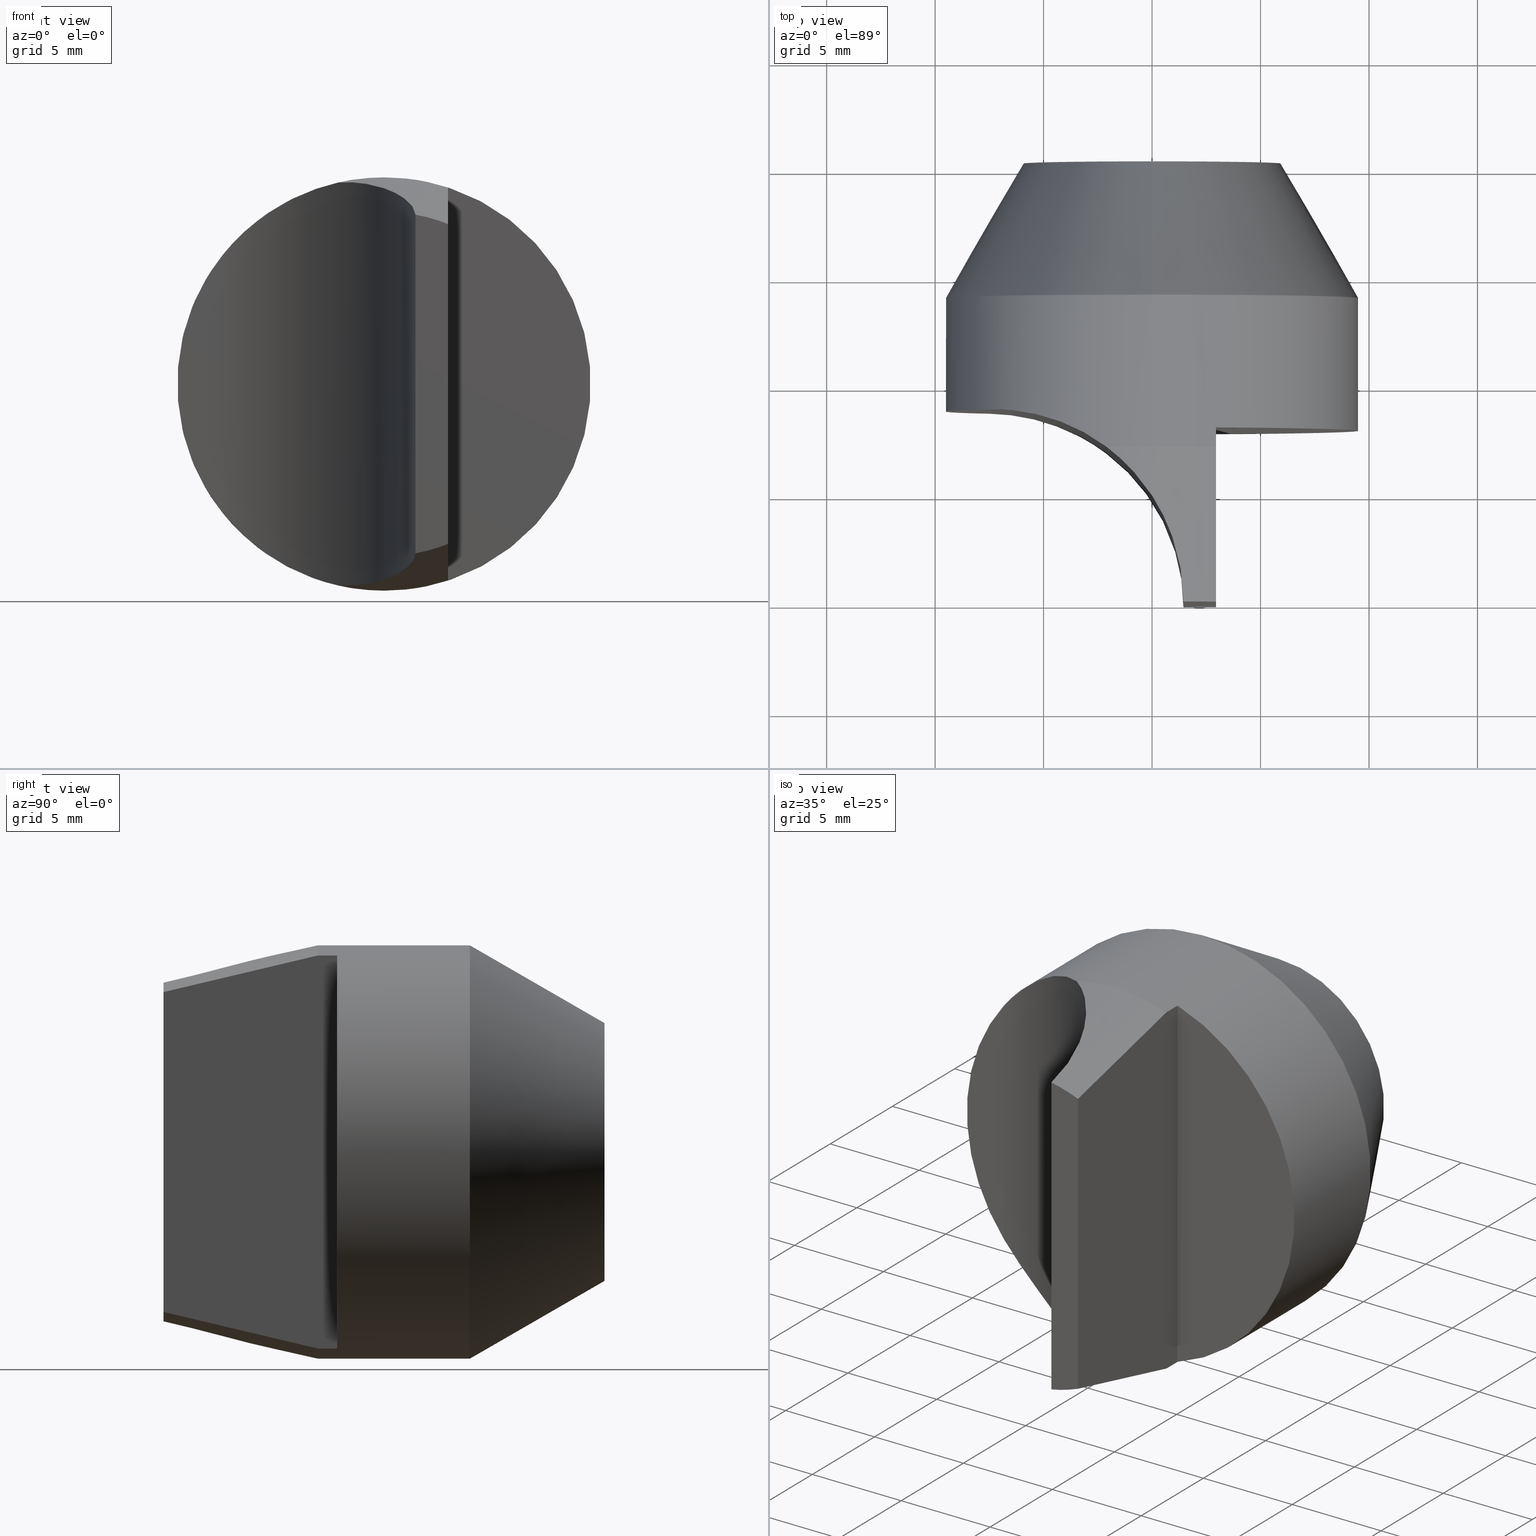
[diagram: canonical four-view strip — front | top / right | iso, engineering-drawing reading convention]
A machine part, canonical four-view strip (front | top / right | iso — engineering-drawing reading convention). The complete STEP part file that produces these views, byte-faithful:
ISO-10303-21;
HEADER;
FILE_DESCRIPTION (( 'STEP AP214' ),
    '1' );
FILE_NAME ('MS2041.STEP',
    '2024-04-24T15:58:21',
    ( '' ),
    ( '' ),
    'SwSTEP 2.0',
    'SolidWorks 2023',
    '' );
FILE_SCHEMA (( 'AUTOMOTIVE_DESIGN' ));
ENDSEC;

DATA;
#1 = DIRECTION ( 'NONE',  ( 0.000000000000000000, 0.3826834323650906144, 0.9238795325112862944 ) ) ;
#2 = ORIENTED_EDGE ( 'NONE', *, *, #168, .T. ) ;
#3 = DIRECTION ( 'NONE',  ( 2.636918912803343208E-16, -1.000000000000000000, -0.000000000000000000 ) ) ;
#4 = DIRECTION ( 'NONE',  ( 0.000000000000000000, 0.000000000000000000, -1.000000000000000000 ) ) ;
#5 = CARTESIAN_POINT ( 'NONE',  ( 0.000000000000000000, 0.2800000000000000266, -0.3750000000000000555 ) ) ;
#6 = B_SPLINE_CURVE_WITH_KNOTS ( 'NONE', 3,
 ( #506, #469, #110, #206 ),
 .UNSPECIFIED., .F., .F.,
 ( 4, 4 ),
 ( 0.02086923273372161616, 0.02817891984336346606 ),
 .UNSPECIFIED. ) ;
#7 = EDGE_CURVE ( 'NONE', #29, #303, #258, .T. ) ;
#8 = AXIS2_PLACEMENT_3D ( 'NONE', #470, #263, #225 ) ;
#9 = ORIENTED_EDGE ( 'NONE', *, *, #516, .T. ) ;
#10 = CARTESIAN_POINT ( 'NONE',  ( 0.05389593144397528818, 0.05358757262335893390, -0.3200295525406460784 ) ) ;
#11 = DIRECTION ( 'NONE',  ( -0.000000000000000000, -1.000000000000000000, -0.000000000000000000 ) ) ;
#12 = CARTESIAN_POINT ( 'NONE',  ( 0.008162530733020059021, 0.1788445712727954884, -0.3524034818403248837 ) ) ;
#13 = PLANE ( 'NONE',  #95 ) ;
#14 = DIRECTION ( 'NONE',  ( -0.000000000000000000, -1.000000000000000000, -0.000000000000000000 ) ) ;
#15 = DIRECTION ( 'NONE',  ( -0.000000000000000000, -1.000000000000000000, -0.000000000000000000 ) ) ;
#16 = CONICAL_SURFACE ( 'NONE', #494, 0.3125000000000000000, 0.2196141251765998947 ) ;
#17 =( NAMED_UNIT ( * ) PLANE_ANGLE_UNIT ( ) SI_UNIT ( $, .RADIAN. ) );
#18 = DIMENSIONAL_EXPONENTS ( 1.000000000000000000, 0.000000000000000000, 0.000000000000000000, 0.000000000000000000, 0.000000000000000000, 0.000000000000000000, 0.000000000000000000 ) ;
#19 = CARTESIAN_POINT ( 'NONE',  ( 0.000000000000000000, 0.000000000000000000, 0.000000000000000000 ) ) ;
#20 = EDGE_CURVE ( 'NONE', #480, #434, #172, .T. ) ;
#21 = DIRECTION ( 'NONE',  ( 8.328804858732496440E-16, -1.000000000000000000, -0.000000000000000000 ) ) ;
#22 = CARTESIAN_POINT ( 'NONE',  ( 0.1159999999999999365, 0.3150000000000000022, -0.3566076275123682415 ) ) ;
#23 = ORIENTED_EDGE ( 'NONE', *, *, #374, .F. ) ;
#24 = AXIS2_PLACEMENT_3D ( 'NONE', #208, #64, #424 ) ;
#25 = CARTESIAN_POINT ( 'NONE',  ( -0.09173517367998862415, 0.2865513802599914395, -0.3637167740118287806 ) ) ;
#26 = CARTESIAN_POINT ( 'NONE',  ( -0.2632037937924236459, 0.3488152442028354949, 0.2673453676166723247 ) ) ;
#27 = ORIENTED_EDGE ( 'NONE', *, *, #81, .T. ) ;
#28 = CARTESIAN_POINT ( 'NONE',  ( -0.1751943201831005215, 0.3297314168070968887, 0.3317241511884505556 ) ) ;
#29 = VERTEX_POINT ( 'NONE', #527 ) ;
#30 = DIRECTION ( 'NONE',  ( 0.000000000000000000, 0.000000000000000000, 1.000000000000000000 ) ) ;
#31 = ORIENTED_EDGE ( 'NONE', *, *, #396, .F. ) ;
#32 = CARTESIAN_POINT ( 'NONE',  ( 0.000000000000000000, 0.8000000000000000444, -0.2340000000000000135 ) ) ;
#33 = ADVANCED_FACE ( 'NONE', ( #397 ), #392, .F. ) ;
#34 = ORIENTED_EDGE ( 'NONE', *, *, #330, .F. ) ;
#35 = FACE_OUTER_BOUND ( 'NONE', #334, .T. ) ;
#36 = VERTEX_POINT ( 'NONE', #80 ) ;
#37 = CARTESIAN_POINT ( 'NONE',  ( 0.000000000000000000, 0.5557808361327850610, 0.000000000000000000 ) ) ;
#38 = CARTESIAN_POINT ( 'NONE',  ( -0.1564695837394791678, 0.3224289547519984533, 0.3409563486291329326 ) ) ;
#39 = AXIS2_PLACEMENT_3D ( 'NONE', #518, #552, #30 ) ;
#40 = AXIS2_PLACEMENT_3D ( 'NONE', #94, #440, #229 ) ;
#41 = ADVANCED_FACE ( 'NONE', ( #85 ), #133, .F. ) ;
#42 = CARTESIAN_POINT ( 'NONE',  ( 0.03773540837664415143, 0.1157470939069149135, 0.3362670873531961035 ) ) ;
#43 = SURFACE_STYLE_FILL_AREA ( #331 ) ;
#44 = ORIENTED_EDGE ( 'NONE', *, *, #266, .T. ) ;
#45 = CARTESIAN_POINT ( 'NONE',  ( 0.05210639781679927279, 0.06734073502539256184, 0.3235331812072446134 ) ) ;
#46 = DIRECTION ( 'NONE',  ( 0.000000000000000000, 0.000000000000000000, -1.000000000000000000 ) ) ;
#47 = ORIENTED_EDGE ( 'NONE', *, *, #92, .F. ) ;
#48 = CARTESIAN_POINT ( 'NONE',  ( 0.05699999999999994654, 0.000000000000000000, -0.3072576280582794417 ) ) ;
#49 = CARTESIAN_POINT ( 'NONE',  ( -1.023567611930438158E-17, 0.1914445089314394666, 0.3552331493150534536 ) ) ;
#50 =( NAMED_UNIT ( * ) SI_UNIT ( $, .STERADIAN. ) SOLID_ANGLE_UNIT ( ) );
#51 = CARTESIAN_POINT ( 'NONE',  ( 4.592425496802575451E-17, 0.000000000000000000, 0.3750000000000000555 ) ) ;
#52 = DIRECTION ( 'NONE',  ( -1.000000000000000000, -9.106159978880875423E-16, 0.000000000000000000 ) ) ;
#53 = CARTESIAN_POINT ( 'NONE',  ( -0.2636543918100952566, 0.3491696361071627286, -0.2675791188318064617 ) ) ;
#54 = ADVANCED_FACE ( 'NONE', ( #218 ), #180, .T. ) ;
#55 = CARTESIAN_POINT ( 'NONE',  ( -0.1755888523203660290, 0.3302752905494422131, -0.3320461939475211621 ) ) ;
#56 = EDGE_LOOP ( 'NONE', ( #9, #83, #432, #296 ) ) ;
#57 = ORIENTED_EDGE ( 'NONE', *, *, #498, .F. ) ;
#58 = VECTOR ( 'NONE', #182, 39.37007874015748143 ) ;
#59 = CARTESIAN_POINT ( 'NONE',  ( 0.000000000000000000, 0.4000000000000000777, 0.1874999999999998335 ) ) ;
#60 = VERTEX_POINT ( 'NONE', #178 ) ;
#61 = LINE ( 'NONE', #500, #315 ) ;
#62 = CARTESIAN_POINT ( 'NONE',  ( -0.08300000000000005984, 0.2800000000000000266, 0.3656993300513415868 ) ) ;
#63 = ORIENTED_EDGE ( 'NONE', *, *, #540, .F. ) ;
#64 = DIRECTION ( 'NONE',  ( -8.328804858732495454E-16, 1.000000000000000000, 0.000000000000000000 ) ) ;
#65 = EDGE_LOOP ( 'NONE', ( #312, #163, #359 ) ) ;
#66 = DIRECTION ( 'NONE',  ( 0.000000000000000000, 0.000000000000000000, 1.000000000000000000 ) ) ;
#67 = EDGE_CURVE ( 'NONE', #332, #75, #146, .T. ) ;
#68 = ORIENTED_EDGE ( 'NONE', *, *, #220, .F. ) ;
#69 = LINE ( 'NONE', #550, #260 ) ;
#70 = SHAPE_DEFINITION_REPRESENTATION ( #102, #452 ) ;
#71 = ORIENTED_EDGE ( 'NONE', *, *, #174, .F. ) ;
#72 = FACE_OUTER_BOUND ( 'NONE', #56, .T. ) ;
#73 = LINE ( 'NONE', #59, #204 ) ;
#74 = ADVANCED_FACE ( 'NONE', ( #228 ), #13, .F. ) ;
#75 = VERTEX_POINT ( 'NONE', #535 ) ;
#76 = DIRECTION ( 'NONE',  ( -0.000000000000000000, 1.000000000000000000, -0.000000000000000000 ) ) ;
#77 = CARTESIAN_POINT ( 'NONE',  ( 0.000000000000000000, 0.2800000000000000266, 0.000000000000000000 ) ) ;
#78 = APPLICATION_CONTEXT ( 'automotive_design' ) ;
#79 = STYLED_ITEM ( 'NONE', ( #476 ), #430 ) ;
#80 = CARTESIAN_POINT ( 'NONE',  ( 0.05699999999999994654, 0.000000000000000000, -0.3072576280582794417 ) ) ;
#81 = EDGE_CURVE ( 'NONE', #349, #467, #284, .T. ) ;
#82 = CARTESIAN_POINT ( 'NONE',  ( -0.02373373549349001854, 0.2238252393056452960, 0.3617354392341721181 ) ) ;
#83 = ORIENTED_EDGE ( 'NONE', *, *, #92, .T. ) ;
#84 = FACE_OUTER_BOUND ( 'NONE', #288, .T. ) ;
#85 = FACE_OUTER_BOUND ( 'NONE', #352, .T. ) ;
#86 = PLANE ( 'NONE',  #89 ) ;
#87 = CARTESIAN_POINT ( 'NONE',  ( 0.03168859324749772471, 0.1317699082634022356, 0.3405210863637349594 ) ) ;
#88 = CIRCLE ( 'NONE', #428, 0.3750000000000000555 ) ;
#89 = AXIS2_PLACEMENT_3D ( 'NONE', #231, #269, #398 ) ;
#90 = LENGTH_MEASURE_WITH_UNIT ( LENGTH_MEASURE( 0.02539999999999999897 ), #105 );
#91 = DIRECTION ( 'NONE',  ( 0.000000000000000000, 0.000000000000000000, 1.000000000000000000 ) ) ;
#92 = EDGE_CURVE ( 'NONE', #60, #394, #453, .T. ) ;
#93 = ORIENTED_EDGE ( 'NONE', *, *, #181, .T. ) ;
#94 = CARTESIAN_POINT ( 'NONE',  ( 0.000000000000000000, 0.8000000000000000444, 0.000000000000000000 ) ) ;
#95 = AXIS2_PLACEMENT_3D ( 'NONE', #281, #142, #449 ) ;
#96 = AXIS2_PLACEMENT_3D ( 'NONE', #515, #377, #66 ) ;
#97 = AXIS2_PLACEMENT_3D ( 'NONE', #77, #197, #261 ) ;
#98 = B_SPLINE_CURVE_WITH_KNOTS ( 'NONE', 3,
 ( #383, #342, #164, #344 ),
 .UNSPECIFIED., .F., .F.,
 ( 4, 4 ),
 ( 0.02111884326923641614, 0.02842507369749490420 ),
 .UNSPECIFIED. ) ;
#99 = DIRECTION ( 'NONE',  ( -0.000000000000000000, -1.000000000000000000, -0.000000000000000000 ) ) ;
#100 = FACE_OUTER_BOUND ( 'NONE', #298, .T. ) ;
#101 = CARTESIAN_POINT ( 'NONE',  ( -0.2304421806409243656, 0.3447711106462970077, -0.2966624757818433489 ) ) ;
#102 = PRODUCT_DEFINITION_SHAPE ( 'NONE', 'NONE',  #351 ) ;
#103 = ORIENTED_EDGE ( 'NONE', *, *, #181, .F. ) ;
#104 = DIRECTION ( 'NONE',  ( -0.000000000000000000, 1.000000000000000000, -0.000000000000000000 ) ) ;
#105 =( LENGTH_UNIT ( ) NAMED_UNIT ( * ) SI_UNIT ( $, .METRE. ) );
#106 = CIRCLE ( 'NONE', #426, 0.2340000000000000135 ) ;
#107 = CARTESIAN_POINT ( 'NONE',  ( 0.000000000000000000, 0.3500000000000003109, 0.000000000000000000 ) ) ;
#108 = AXIS2_PLACEMENT_3D ( 'NONE', #530, #444, #435 ) ;
#109 = EDGE_LOOP ( 'NONE', ( #501, #387, #192 ) ) ;
#110 = CARTESIAN_POINT ( 'NONE',  ( 0.1160000000000000198, 0.09325987593988223356, 0.3125914791619474609 ) ) ;
#111 = CARTESIAN_POINT ( 'NONE',  ( -0.03040658045483055419, 0.2316223268663026580, 0.3629943207310737385 ) ) ;
#112 = EDGE_CURVE ( 'NONE', #467, #349, #483, .T. ) ;
#113 = ORIENTED_EDGE ( 'NONE', *, *, #279, .F. ) ;
#114 = EDGE_CURVE ( 'NONE', #249, #394, #553, .T. ) ;
#115 = FACE_OUTER_BOUND ( 'NONE', #346, .T. ) ;
#116 = ORIENTED_EDGE ( 'NONE', *, *, #386, .T. ) ;
#117 = CARTESIAN_POINT ( 'NONE',  ( 0.000000000000000000, 0.000000000000000000, 0.000000000000000000 ) ) ;
#118 = AXIS2_PLACEMENT_3D ( 'NONE', #186, #322, #91 ) ;
#119 = PRODUCT ( 'MS2041', 'MS2041', '', ( #156 ) ) ;
#120 = VERTEX_POINT ( 'NONE', #195 ) ;
#121 = DIRECTION ( 'NONE',  ( 0.000000000000000000, 0.000000000000000000, -1.000000000000000000 ) ) ;
#122 = ADVANCED_FACE ( 'NONE', ( #100 ), #145, .F. ) ;
#123 = DIRECTION ( 'NONE',  ( -0.000000000000000000, 1.000000000000000000, -0.000000000000000000 ) ) ;
#124 = CARTESIAN_POINT ( 'NONE',  ( 0.000000000000000000, 0.5557808361327850610, -0.3750000000000000555 ) ) ;
#125 = DIRECTION ( 'NONE',  ( 0.000000000000000000, 0.000000000000000000, 1.000000000000000000 ) ) ;
#126 = ORIENTED_EDGE ( 'NONE', *, *, #131, .F. ) ;
#127 = DIRECTION ( 'NONE',  ( 0.000000000000000000, 1.000000000000000000, 0.000000000000000000 ) ) ;
#128 = DIRECTION ( 'NONE',  ( -0.000000000000000000, -0.000000000000000000, 1.000000000000000000 ) ) ;
#129 = CARTESIAN_POINT ( 'NONE',  ( 0.1160000000000000059, 0.3150000000000000022, -0.3750000000000000555 ) ) ;
#130 = CARTESIAN_POINT ( 'NONE',  ( 0.1160000000000000059, 1.257517330416883377E-17, 0.3566076275123682415 ) ) ;
#131 = EDGE_CURVE ( 'NONE', #29, #251, #61, .T. ) ;
#132 = CARTESIAN_POINT ( 'NONE',  ( 0.04180344482912257131, 0.1054280253186961475, -0.3334952626512851515 ) ) ;
#133 = CYLINDRICAL_SURFACE ( 'NONE', #8, 0.1874999999999998890 ) ;
#134 = CIRCLE ( 'NONE', #454, 0.3750000000000000555 ) ;
#135 = CONICAL_SURFACE ( 'NONE', #415, 0.3125000000000000000, 0.2196141251765998947 ) ;
#136 = CIRCLE ( 'NONE', #118, 0.1874999999999999167 ) ;
#137 = CARTESIAN_POINT ( 'NONE',  ( 2.296212748401285877E-17, 0.8000000000000000444, -0.1874999999999998890 ) ) ;
#138 = EDGE_CURVE ( 'NONE', #394, #249, #134, .T. ) ;
#139 = DIMENSIONAL_EXPONENTS ( 1.000000000000000000, 0.000000000000000000, 0.000000000000000000, 0.000000000000000000, 0.000000000000000000, 0.000000000000000000, 0.000000000000000000 ) ;
#140 = DIRECTION ( 'NONE',  ( 0.000000000000000000, 0.000000000000000000, -1.000000000000000000 ) ) ;
#141 =( NAMED_UNIT ( * ) PLANE_ANGLE_UNIT ( ) SI_UNIT ( $, .RADIAN. ) );
#142 = DIRECTION ( 'NONE',  ( -2.636918912803343208E-16, 1.000000000000000000, 0.000000000000000000 ) ) ;
#143 = CARTESIAN_POINT ( 'NONE',  ( -0.1006927159445004383, 0.2926316993642499864, -0.3613552875620836269 ) ) ;
#144 = AXIS2_PLACEMENT_3D ( 'NONE', #360, #479, #313 ) ;
#145 = CYLINDRICAL_SURFACE ( 'NONE', #223, 0.1874999999999998890 ) ;
#146 = B_SPLINE_CURVE_WITH_KNOTS ( 'NONE', 3,
 ( #357, #427, #45, #42, #87, #270, #439, #49 ),
 .UNSPECIFIED., .F., .F.,
 ( 4, 2, 2, 4 ),
 ( 2.018527098240391568E-07, 0.002631408996182897034, 0.003947012567919432578, 0.005262616139655970290 ),
 .UNSPECIFIED. ) ;
#147 = ORIENTED_EDGE ( 'NONE', *, *, #174, .T. ) ;
#148 = EDGE_LOOP ( 'NONE', ( #497, #551, #216, #505, #372, #537, #320, #554 ) ) ;
#149 = DIRECTION ( 'NONE',  ( -0.000000000000000000, -0.000000000000000000, 1.000000000000000000 ) ) ;
#150 = CARTESIAN_POINT ( 'NONE',  ( 2.296212748401285260E-17, 0.4000000000000000777, -0.1874999999999998335 ) ) ;
#151 = ORIENTED_EDGE ( 'NONE', *, *, #422, .T. ) ;
#152 = B_SPLINE_CURVE_WITH_KNOTS ( 'NONE', 3,
 ( #536, #326, #307, #82, #111, #295, #463, #200 ),
 .UNSPECIFIED., .F., .F.,
 ( 4, 2, 2, 4 ),
 ( 0.005262616139655970290, 0.006033763861045115563, 0.006804911582434260836, 0.008347207025212551382 ),
 .UNSPECIFIED. ) ;
#153 = VECTOR ( 'NONE', #252, 39.37007874015748143 ) ;
#154 = PLANE ( 'NONE',  #24 ) ;
#155 = LINE ( 'NONE', #150, #335 ) ;
#156 = PRODUCT_CONTEXT ( 'NONE', #371, 'mechanical' ) ;
#157 = EDGE_LOOP ( 'NONE', ( #34, #113 ) ) ;
#158 = FACE_OUTER_BOUND ( 'NONE', #65, .T. ) ;
#159 = EDGE_CURVE ( 'NONE', #60, #207, #106, .T. ) ;
#160 = ORIENTED_EDGE ( 'NONE', *, *, #341, .T. ) ;
#161 = CARTESIAN_POINT ( 'NONE',  ( 0.000000000000000000, 0.000000000000000000, 0.000000000000000000 ) ) ;
#162 = ADVANCED_FACE ( 'NONE', ( #35 ), #16, .T. ) ;
#163 = ORIENTED_EDGE ( 'NONE', *, *, #401, .T. ) ;
#164 = CARTESIAN_POINT ( 'NONE',  ( 0.1160000000000000198, 0.1866109360835676578, -0.3346867140341758806 ) ) ;
#165 = VECTOR ( 'NONE', #484, 39.37007874015748143 ) ;
#166 = ORIENTED_EDGE ( 'NONE', *, *, #498, .T. ) ;
#167 = CARTESIAN_POINT ( 'NONE',  ( 0.1160000000000000059, 1.257517330416883377E-17, -0.3566076275123682415 ) ) ;
#168 = EDGE_CURVE ( 'NONE', #36, #332, #69, .T. ) ;
#169 = CARTESIAN_POINT ( 'NONE',  ( -0.2860095759409554406, 0.3499999999999998668, 0.2427940999160285440 ) ) ;
#170 = ORIENTED_EDGE ( 'NONE', *, *, #488, .F. ) ;
#171 = SURFACE_STYLE_USAGE ( .BOTH. , #391 ) ;
#172 = LINE ( 'NONE', #130, #285 ) ;
#173 = CARTESIAN_POINT ( 'NONE',  ( -0.08300000000000004596, 0.2800000000000000822, -0.3656993300513415868 ) ) ;
#174 = EDGE_CURVE ( 'NONE', #434, #265, #88, .T. ) ;
#175 = EDGE_CURVE ( 'NONE', #210, #517, #381, .T. ) ;
#176 = MECHANICAL_DESIGN_GEOMETRIC_PRESENTATION_REPRESENTATION (  '', ( #79 ), #224 ) ;
#177 = VERTEX_POINT ( 'NONE', #304 ) ;
#178 = CARTESIAN_POINT ( 'NONE',  ( 3.729049503403690887E-17, 0.8000000000000000444, 0.2340000000000000135 ) ) ;
#179 = CARTESIAN_POINT ( 'NONE',  ( 0.01480946273222317165, 0.1671334981151129662, -0.3495465601968250624 ) ) ;
#180 = CYLINDRICAL_SURFACE ( 'NONE', #437, 0.3750000000000000555 ) ;
#181 = EDGE_CURVE ( 'NONE', #210, #332, #362, .T. ) ;
#182 = DIRECTION ( 'NONE',  ( -0.000000000000000000, -1.000000000000000000, -0.000000000000000000 ) ) ;
#183 = AXIS2_PLACEMENT_3D ( 'NONE', #369, #272, #441 ) ;
#184 = CARTESIAN_POINT ( 'NONE',  ( 0.000000000000000000, 0.5557808361327850610, -0.3750000000000000555 ) ) ;
#185 = EDGE_CURVE ( 'NONE', #265, #340, #446, .T. ) ;
#186 = CARTESIAN_POINT ( 'NONE',  ( 0.000000000000000000, 0.8000000000000000444, 0.000000000000000000 ) ) ;
#187 = DIRECTION ( 'NONE',  ( -0.000000000000000000, -1.000000000000000000, -0.000000000000000000 ) ) ;
#188 = CARTESIAN_POINT ( 'NONE',  ( 0.000000000000000000, 0.5557808361327850610, 0.000000000000000000 ) ) ;
#189 = EDGE_CURVE ( 'NONE', #177, #324, #466, .T. ) ;
#190 = ADVANCED_FACE ( 'NONE', ( #158 ), #193, .F. ) ;
#191 = AXIS2_PLACEMENT_3D ( 'NONE', #188, #325, #234 ) ;
#192 = ORIENTED_EDGE ( 'NONE', *, *, #185, .T. ) ;
#193 = CONICAL_SURFACE ( 'NONE', #353, 0.1874999999999998335, 1.178097245096171530 ) ;
#194 = VECTOR ( 'NONE', #389, 39.37007874015748854 ) ;
#195 = CARTESIAN_POINT ( 'NONE',  ( 2.296212748401286185E-17, 0.8000000000000000444, -0.1874999999999999167 ) ) ;
#196 = CARTESIAN_POINT ( 'NONE',  ( -0.1568029075420607765, 0.3231046993329488859, -0.3412513862951868093 ) ) ;
#197 = DIRECTION ( 'NONE',  ( -0.000000000000000000, -1.000000000000000000, -0.000000000000000000 ) ) ;
#198 = ORIENTED_EDGE ( 'NONE', *, *, #189, .T. ) ;
#199 = DIRECTION ( 'NONE',  ( -0.000000000000000000, -1.000000000000000000, -0.000000000000000000 ) ) ;
#200 = CARTESIAN_POINT ( 'NONE',  ( -0.08300000000000005984, 0.2800000000000000266, 0.3656993300513415868 ) ) ;
#201 = ORIENTED_EDGE ( 'NONE', *, *, #7, .T. ) ;
#202 = DIRECTION ( 'NONE',  ( -0.000000000000000000, -0.000000000000000000, 1.000000000000000000 ) ) ;
#203 = UNCERTAINTY_MEASURE_WITH_UNIT (LENGTH_MEASURE( 1.000000000000000082E-05 ), #404, 'distance_accuracy_value', 'NONE');
#204 = VECTOR ( 'NONE', #1, 39.37007874015748143 ) ;
#205 = ORIENTED_EDGE ( 'NONE', *, *, #114, .T. ) ;
#206 = CARTESIAN_POINT ( 'NONE',  ( 0.1160000000000000336, 0.000000000000000000, 0.2901727933490664268 ) ) ;
#207 = VERTEX_POINT ( 'NONE', #32 ) ;
#208 = CARTESIAN_POINT ( 'NONE',  ( -2.915081700556376318E-16, 0.3500000000000003109, -0.3750000000000000555 ) ) ;
#209 = PRODUCT_RELATED_PRODUCT_CATEGORY ( 'part', '', ( #119 ) ) ;
#210 = VERTEX_POINT ( 'NONE', #511 ) ;
#211 = DIRECTION ( 'NONE',  ( 0.000000000000000000, 0.000000000000000000, -1.000000000000000000 ) ) ;
#212 = B_SPLINE_CURVE_WITH_KNOTS ( 'NONE', 3,
 ( #62, #256, #538, #410, #213, #244, #38, #28, #337, #460, #350, #378, #26, #508, #169, #348 ),
 .UNSPECIFIED., .F., .F.,
 ( 4, 2, 2, 2, 2, 2, 2, 4 ),
 ( 0.008225823542601592292, 0.009065952092789503897, 0.009906080642977413767, 0.01074620919316532537, 0.01158633774335323698, 0.01326659484372905498, 0.01410672339391696659, 0.01494685194410487646 ),
 .UNSPECIFIED. ) ;
#213 = CARTESIAN_POINT ( 'NONE',  ( -0.1284678968790500531, 0.3090911609416320260, 0.3524506349133188499 ) ) ;
#214 = AXIS2_PLACEMENT_3D ( 'NONE', #472, #217, #373 ) ;
#215 = PRODUCT_DEFINITION_FORMATION_WITH_SPECIFIED_SOURCE ( 'ANY', '', #119, .NOT_KNOWN. ) ;
#216 = ORIENTED_EDGE ( 'NONE', *, *, #509, .T. ) ;
#217 = DIRECTION ( 'NONE',  ( -1.000000000000000000, -1.084066664152485527E-16, 0.000000000000000000 ) ) ;
#218 = FACE_OUTER_BOUND ( 'NONE', #283, .T. ) ;
#219 = CARTESIAN_POINT ( 'NONE',  ( -0.2929999999999999272, 0.3500000000000000333, 0.2340427311411316103 ) ) ;
#220 = EDGE_CURVE ( 'NONE', #434, #210, #6, .T. ) ;
#221 = CARTESIAN_POINT ( 'NONE',  ( -0.2929999999999999272, 0.000000000000000000, -0.3750000000000000555 ) ) ;
#222 = FACE_OUTER_BOUND ( 'NONE', #423, .T. ) ;
#223 = AXIS2_PLACEMENT_3D ( 'NONE', #282, #333, #329 ) ;
#224 =( GEOMETRIC_REPRESENTATION_CONTEXT ( 3 ) GLOBAL_UNCERTAINTY_ASSIGNED_CONTEXT ( ( #301 ) ) GLOBAL_UNIT_ASSIGNED_CONTEXT ( ( #316, #17, #50 ) ) REPRESENTATION_CONTEXT ( 'NONE', 'WORKASPACE' ) );
#225 = DIRECTION ( 'NONE',  ( 0.000000000000000000, 0.000000000000000000, 1.000000000000000000 ) ) ;
#226 = LINE ( 'NONE', #184, #409 ) ;
#227 = ADVANCED_FACE ( 'NONE', ( #115 ), #154, .F. ) ;
#228 = FACE_OUTER_BOUND ( 'NONE', #473, .T. ) ;
#229 = DIRECTION ( 'NONE',  ( 0.000000000000000000, 0.000000000000000000, -1.000000000000000000 ) ) ;
#230 = CARTESIAN_POINT ( 'NONE',  ( -0.08300000000000004596, 0.2800000000000000822, -0.3656993300513415868 ) ) ;
#231 = CARTESIAN_POINT ( 'NONE',  ( 0.3125000000000000000, 0.000000000000000000, 0.000000000000000000 ) ) ;
#232 = CARTESIAN_POINT ( 'NONE',  ( -0.1190013356496691516, 0.3038747567303218267, -0.3557461862156089949 ) ) ;
#233 = AXIS2_PLACEMENT_3D ( 'NONE', #161, #420, #385 ) ;
#234 = DIRECTION ( 'NONE',  ( 0.000000000000000000, 0.000000000000000000, -1.000000000000000000 ) ) ;
#235 = ADVANCED_FACE ( 'NONE', ( #347 ), #135, .T. ) ;
#236 = CARTESIAN_POINT ( 'NONE',  ( -0.2123448512199925808, 0.3411185895289821635, -0.3098318642983278193 ) ) ;
#237 = ORIENTED_EDGE ( 'NONE', *, *, #7, .F. ) ;
#238 = CARTESIAN_POINT ( 'NONE',  ( 2.296212748401285260E-17, 0.4000000000000000777, -0.1874999999999998335 ) ) ;
#239 = AXIS2_PLACEMENT_3D ( 'NONE', #356, #123, #399 ) ;
#240 = AXIS2_PLACEMENT_3D ( 'NONE', #107, #21, #52 ) ;
#241 = CARTESIAN_POINT ( 'NONE',  ( 4.592425496802575451E-17, 0.5557808361327850610, 0.3750000000000000555 ) ) ;
#242 = ORIENTED_EDGE ( 'NONE', *, *, #112, .T. ) ;
#243 = CARTESIAN_POINT ( 'NONE',  ( 0.000000000000000000, 0.8000000000000000444, 0.000000000000000000 ) ) ;
#244 = CARTESIAN_POINT ( 'NONE',  ( -0.1471107150038001021, 0.3183150565916514907, 0.3450853345339359168 ) ) ;
#245 = DIRECTION ( 'NONE',  ( 0.000000000000000000, 0.000000000000000000, 1.000000000000000000 ) ) ;
#246 = ORIENTED_EDGE ( 'NONE', *, *, #485, .T. ) ;
#247 = ADVANCED_FACE ( 'NONE', ( #462 ), #455, .F. ) ;
#248 = DIRECTION ( 'NONE',  ( 0.000000000000000000, 1.000000000000000000, 0.000000000000000000 ) ) ;
#249 = VERTEX_POINT ( 'NONE', #124 ) ;
#250 = CARTESIAN_POINT ( 'NONE',  ( 0.000000000000000000, 0.8000000000000000444, 0.1874999999999999167 ) ) ;
#251 = VERTEX_POINT ( 'NONE', #250 ) ;
#252 = DIRECTION ( 'NONE',  ( 0.000000000000000000, 0.000000000000000000, -1.000000000000000000 ) ) ;
#253 = APPLICATION_PROTOCOL_DEFINITION ( 'draft international standard', 'automotive_design', 1998, #78 ) ;
#254 = ORIENTED_EDGE ( 'NONE', *, *, #20, .F. ) ;
#255 = DIRECTION ( 'NONE',  ( 0.000000000000000000, 1.000000000000000000, 0.000000000000000000 ) ) ;
#256 = CARTESIAN_POINT ( 'NONE',  ( -0.09170077586641516010, 0.2865255818998113102, 0.3637245810223753151 ) ) ;
#257 = ORIENTED_EDGE ( 'NONE', *, *, #401, .F. ) ;
#258 = CIRCLE ( 'NONE', #239, 0.1874999999999998335 ) ;
#259 = DIRECTION ( 'NONE',  ( 0.000000000000000000, 1.000000000000000000, 0.000000000000000000 ) ) ;
#260 = VECTOR ( 'NONE', #202, 39.37007874015748143 ) ;
#261 = DIRECTION ( 'NONE',  ( 0.000000000000000000, 0.000000000000000000, -1.000000000000000000 ) ) ;
#262 = AXIS2_PLACEMENT_3D ( 'NONE', #19, #15, #140 ) ;
#263 = DIRECTION ( 'NONE',  ( -0.000000000000000000, 1.000000000000000000, -0.000000000000000000 ) ) ;
#264 = CARTESIAN_POINT ( 'NONE',  ( -0.08300000000000004596, 0.2800000000000000822, -0.3656993300513415868 ) ) ;
#265 = VERTEX_POINT ( 'NONE', #306 ) ;
#266 = EDGE_CURVE ( 'NONE', #517, #177, #98, .T. ) ;
#267 = LINE ( 'NONE', #129, #165 ) ;
#268 = ORIENTED_EDGE ( 'NONE', *, *, #168, .F. ) ;
#269 = DIRECTION ( 'NONE',  ( 0.000000000000000000, -1.000000000000000000, -0.000000000000000000 ) ) ;
#270 = CARTESIAN_POINT ( 'NONE',  ( 0.01747203272669209037, 0.1624595586702742567, 0.3484033464578458195 ) ) ;
#271 = CARTESIAN_POINT ( 'NONE',  ( 0.000000000000000000, 0.000000000000000000, -0.3750000000000000555 ) ) ;
#272 = DIRECTION ( 'NONE',  ( 0.000000000000000000, 1.000000000000000000, 0.000000000000000000 ) ) ;
#273 =( LENGTH_UNIT ( ) NAMED_UNIT ( * ) SI_UNIT ( $, .METRE. ) );
#274 = CARTESIAN_POINT ( 'NONE',  ( 0.05700000000000003675, 0.000000000000000000, 0.3072576280582791086 ) ) ;
#275 = VERTEX_POINT ( 'NONE', #429 ) ;
#276 = CARTESIAN_POINT ( 'NONE',  ( 0.1160000000000000336, -5.624125149066351640E-23, -0.2901727933490664268 ) ) ;
#277 = DIRECTION ( 'NONE',  ( 6.123233995736705639E-17, -0.8660254037844414832, 0.4999999999999950595 ) ) ;
#278 = CONICAL_SURFACE ( 'NONE', #355, 0.3125000000000000000, 0.2196141251765998947 ) ;
#279 = EDGE_CURVE ( 'NONE', #120, #251, #523, .T. ) ;
#280 = EDGE_CURVE ( 'NONE', #36, #517, #323, .T. ) ;
#281 = CARTESIAN_POINT ( 'NONE',  ( -8.306294575330528024E-17, 0.3150000000000000022, -0.3750000000000000555 ) ) ;
#282 = CARTESIAN_POINT ( 'NONE',  ( 0.000000000000000000, 0.8000000000000000444, 0.000000000000000000 ) ) ;
#283 = EDGE_LOOP ( 'NONE', ( #205, #160, #71, #254, #31, #513, #63, #317 ) ) ;
#284 = LINE ( 'NONE', #539, #361 ) ;
#285 = VECTOR ( 'NONE', #520, 39.37007874015748143 ) ;
#286 = ADVANCED_FACE ( 'NONE', ( #72 ), #457, .T. ) ;
#287 = FACE_OUTER_BOUND ( 'NONE', #491, .T. ) ;
#288 = EDGE_LOOP ( 'NONE', ( #47, #382, #246, #542 ) ) ;
#289 = CIRCLE ( 'NONE', #40, 0.2340000000000000135 ) ;
#290 = DIRECTION ( 'NONE',  ( -0.000000000000000000, -1.000000000000000000, -0.000000000000000000 ) ) ;
#291 = VECTOR ( 'NONE', #487, 39.37007874015748143 ) ;
#292 = FACE_OUTER_BOUND ( 'NONE', #379, .T. ) ;
#293 = ORIENTED_EDGE ( 'NONE', *, *, #67, .T. ) ;
#294 = DIRECTION ( 'NONE',  ( 0.000000000000000000, 0.000000000000000000, 1.000000000000000000 ) ) ;
#295 = CARTESIAN_POINT ( 'NONE',  ( -0.05132550769390741702, 0.2539887102493640914, 0.3658646029648028319 ) ) ;
#296 = ORIENTED_EDGE ( 'NONE', *, *, #485, .F. ) ;
#297 = CARTESIAN_POINT ( 'NONE',  ( 0.1160000000000000336, 0.000000000000000000, 0.000000000000000000 ) ) ;
#298 = EDGE_LOOP ( 'NONE', ( #461, #237, #522, #546 ) ) ;
#299 = AXIS2_PLACEMENT_3D ( 'NONE', #547, #556, #418 ) ;
#300 = DIRECTION ( 'NONE',  ( -0.000000000000000000, -1.000000000000000000, -0.000000000000000000 ) ) ;
#301 = UNCERTAINTY_MEASURE_WITH_UNIT (LENGTH_MEASURE( 1.000000000000000082E-05 ), #316, 'distance_accuracy_value', 'NONE');
#302 = CONICAL_SURFACE ( 'NONE', #370, 0.3750000000000000555, 0.5235987755982931535 ) ;
#303 = VERTEX_POINT ( 'NONE', #238 ) ;
#304 = CARTESIAN_POINT ( 'NONE',  ( 0.1160000000000000059, 0.2800000000000000266, -0.3566076275123683526 ) ) ;
#305 = EDGE_LOOP ( 'NONE', ( #257, #116, #201 ) ) ;
#306 = CARTESIAN_POINT ( 'NONE',  ( 4.592425496802575451E-17, 0.2800000000000000266, 0.3750000000000000555 ) ) ;
#307 = CARTESIAN_POINT ( 'NONE',  ( -0.01127177500274419326, 0.2079212980707239589, 0.3587867112464082076 ) ) ;
#308 = EDGE_CURVE ( 'NONE', #349, #384, #526, .T. ) ;
#309 = ORIENTED_EDGE ( 'NONE', *, *, #266, .F. ) ;
#310 = ORIENTED_EDGE ( 'NONE', *, *, #540, .T. ) ;
#311 = ORIENTED_EDGE ( 'NONE', *, *, #159, .F. ) ;
#312 = ORIENTED_EDGE ( 'NONE', *, *, #386, .F. ) ;
#313 = DIRECTION ( 'NONE',  ( 0.000000000000000000, 0.000000000000000000, 1.000000000000000000 ) ) ;
#314 = ADVANCED_FACE ( 'NONE', ( #403, #319 ), #405, .T. ) ;
#315 = VECTOR ( 'NONE', #104, 39.37007874015748143 ) ;
#316 =( CONVERSION_BASED_UNIT ( 'INCH', #90 ) LENGTH_UNIT ( ) NAMED_UNIT ( #139 ) );
#317 = ORIENTED_EDGE ( 'NONE', *, *, #509, .F. ) ;
#318 = LINE ( 'NONE', #271, #58 ) ;
#319 = FACE_OUTER_BOUND ( 'NONE', #327, .T. ) ;
#320 = ORIENTED_EDGE ( 'NONE', *, *, #408, .F. ) ;
#321 = VECTOR ( 'NONE', #277, 39.37007874015748143 ) ;
#322 = DIRECTION ( 'NONE',  ( -0.000000000000000000, 1.000000000000000000, -0.000000000000000000 ) ) ;
#323 = CIRCLE ( 'NONE', #545, 0.3125000000000000000 ) ;
#324 = VERTEX_POINT ( 'NONE', #22 ) ;
#325 = DIRECTION ( 'NONE',  ( -0.000000000000000000, -1.000000000000000000, -0.000000000000000000 ) ) ;
#326 = CARTESIAN_POINT ( 'NONE',  ( -0.005444995084659402101, 0.1997779083520337395, 0.3570932831142932251 ) ) ;
#327 = EDGE_LOOP ( 'NONE', ( #549, #311 ) ) ;
#328 = ADVANCED_FACE ( 'NONE', ( #489 ), #531, .T. ) ;
#329 = DIRECTION ( 'NONE',  ( 0.000000000000000000, 0.000000000000000000, 1.000000000000000000 ) ) ;
#330 = EDGE_CURVE ( 'NONE', #251, #120, #136, .T. ) ;
#331 = FILL_AREA_STYLE ('',( #431 ) ) ;
#332 = VERTEX_POINT ( 'NONE', #274 ) ;
#333 = DIRECTION ( 'NONE',  ( -0.000000000000000000, 1.000000000000000000, -0.000000000000000000 ) ) ;
#334 = EDGE_LOOP ( 'NONE', ( #170, #151, #310, #309, #406 ) ) ;
#335 = VECTOR ( 'NONE', #521, 39.37007874015748143 ) ;
#336 = CARTESIAN_POINT ( 'NONE',  ( 0.000000000000000000, 0.000000000000000000, 0.000000000000000000 ) ) ;
#337 = CARTESIAN_POINT ( 'NONE',  ( -0.1846002839174809840, 0.3329312738228164537, 0.3265967015005262764 ) ) ;
#338 = ORIENTED_EDGE ( 'NONE', *, *, #280, .T. ) ;
#339 = CARTESIAN_POINT ( 'NONE',  ( 0.000000000000000000, 0.4000000000000000777, 0.000000000000000000 ) ) ;
#340 = VERTEX_POINT ( 'NONE', #496 ) ;
#341 = EDGE_CURVE ( 'NONE', #394, #265, #442, .T. ) ;
#342 = CARTESIAN_POINT ( 'NONE',  ( 0.1160000000000000198, 0.09326439239779267532, -0.3125925648705651927 ) ) ;
#343 = ORIENTED_EDGE ( 'NONE', *, *, #175, .T. ) ;
#344 = CARTESIAN_POINT ( 'NONE',  ( 0.1160000000000000059, 0.2800000000000000266, -0.3566076275123683526 ) ) ;
#345 = CIRCLE ( 'NONE', #144, 0.1874999999999998335 ) ;
#346 = EDGE_LOOP ( 'NONE', ( #242, #27 ) ) ;
#347 = FACE_OUTER_BOUND ( 'NONE', #109, .T. ) ;
#348 = CARTESIAN_POINT ( 'NONE',  ( -0.2929999999999999272, 0.3500000000000000333, 0.2340427311411316103 ) ) ;
#349 = VERTEX_POINT ( 'NONE', #451 ) ;
#350 = CARTESIAN_POINT ( 'NONE',  ( -0.2301350362444401498, 0.3447174356441221610, 0.2969037184131732010 ) ) ;
#351 = PRODUCT_DEFINITION ( 'UNKNOWN', '', #215, #507 ) ;
#352 = EDGE_LOOP ( 'NONE', ( #411, #510, #368, #126 ) ) ;
#353 = AXIS2_PLACEMENT_3D ( 'NONE', #339, #76, #388 ) ;
#354 = LINE ( 'NONE', #137, #291 ) ;
#355 = AXIS2_PLACEMENT_3D ( 'NONE', #519, #127, #125 ) ;
#356 = CARTESIAN_POINT ( 'NONE',  ( 0.000000000000000000, 0.4000000000000000777, 0.000000000000000000 ) ) ;
#357 = CARTESIAN_POINT ( 'NONE',  ( 0.05700000000000003675, 0.000000000000000000, 0.3072576280582791086 ) ) ;
#358 = CARTESIAN_POINT ( 'NONE',  ( 0.03265874761786600328, 0.1310246780524201293, -0.3404027274564311867 ) ) ;
#359 = ORIENTED_EDGE ( 'NONE', *, *, #465, .T. ) ;
#360 = CARTESIAN_POINT ( 'NONE',  ( 0.000000000000000000, 0.4000000000000000777, 0.000000000000000000 ) ) ;
#361 = VECTOR ( 'NONE', #149, 39.37007874015748143 ) ;
#362 = CIRCLE ( 'NONE', #233, 0.3125000000000000000 ) ;
#363 = CIRCLE ( 'NONE', #108, 0.3750000000000000555 ) ;
#364 = CARTESIAN_POINT ( 'NONE',  ( -0.2929999999999999272, 0.3500000000000000333, -0.2340427311411317490 ) ) ;
#365 = CARTESIAN_POINT ( 'NONE',  ( 0.1159999999999999365, 0.3150000000000000022, 0.3566076275123682415 ) ) ;
#366 = EDGE_CURVE ( 'NONE', #75, #340, #152, .T. ) ;
#367 = ADVANCED_FACE ( 'NONE', ( #287 ), #503, .F. ) ;
#368 = ORIENTED_EDGE ( 'NONE', *, *, #279, .T. ) ;
#369 = CARTESIAN_POINT ( 'NONE',  ( 0.000000000000000000, 0.8000000000000000444, 0.000000000000000000 ) ) ;
#370 = AXIS2_PLACEMENT_3D ( 'NONE', #541, #14, #46 ) ;
#371 = APPLICATION_CONTEXT ( 'automotive_design' ) ;
#372 = ORIENTED_EDGE ( 'NONE', *, *, #308, .F. ) ;
#373 = DIRECTION ( 'NONE',  ( 1.084066664152485527E-16, -1.000000000000000000, 0.000000000000000000 ) ) ;
#374 = EDGE_CURVE ( 'NONE', #75, #265, #456, .T. ) ;
#375 = CARTESIAN_POINT ( 'NONE',  ( 0.000000000000000000, 0.000000000000000000, 0.3125000000000000000 ) ) ;
#376 = ORIENTED_EDGE ( 'NONE', *, *, #81, .F. ) ;
#377 = DIRECTION ( 'NONE',  ( -0.000000000000000000, 1.000000000000000000, -0.000000000000000000 ) ) ;
#378 = CARTESIAN_POINT ( 'NONE',  ( -0.2551088060148685166, 0.3480442298683359970, 0.2750758719378489925 ) ) ;
#379 = EDGE_LOOP ( 'NONE', ( #23, #413, #103, #68, #147 ) ) ;
#380 = CIRCLE ( 'NONE', #555, 0.3750000000000000555 ) ;
#381 = LINE ( 'NONE', #297, #153 ) ;
#382 = ORIENTED_EDGE ( 'NONE', *, *, #159, .T. ) ;
#383 = CARTESIAN_POINT ( 'NONE',  ( 0.1160000000000000336, -5.624125149066351640E-23, -0.2901727933490664268 ) ) ;
#384 = VERTEX_POINT ( 'NONE', #264 ) ;
#385 = DIRECTION ( 'NONE',  ( 0.000000000000000000, 0.000000000000000000, -1.000000000000000000 ) ) ;
#386 = EDGE_CURVE ( 'NONE', #275, #29, #73, .T. ) ;
#387 = ORIENTED_EDGE ( 'NONE', *, *, #374, .T. ) ;
#388 = DIRECTION ( 'NONE',  ( 0.000000000000000000, 0.000000000000000000, 1.000000000000000000 ) ) ;
#389 = DIRECTION ( 'NONE',  ( 0.000000000000000000, 0.9759815859905213165, 0.2178530325871700091 ) ) ;
#390 = CARTESIAN_POINT ( 'NONE',  ( 0.000000000000000000, 0.000000000000000000, 0.000000000000000000 ) ) ;
#391 = SURFACE_SIDE_STYLE ('',( #43 ) ) ;
#392 = CYLINDRICAL_SURFACE ( 'NONE', #529, 0.3499999999999999778 ) ;
#393 = CARTESIAN_POINT ( 'NONE',  ( -0.04092492622502710148, 0.2443479308326645394, -0.3651574873769377616 ) ) ;
#394 = VERTEX_POINT ( 'NONE', #241 ) ;
#395 = CARTESIAN_POINT ( 'NONE',  ( -0.01475677288413905150, 0.2127619446573260908, -0.3597914446998486948 ) ) ;
#396 = EDGE_CURVE ( 'NONE', #324, #480, #380, .T. ) ;
#397 = FACE_OUTER_BOUND ( 'NONE', #468, .T. ) ;
#398 = DIRECTION ( 'NONE',  ( 0.000000000000000000, 0.000000000000000000, -1.000000000000000000 ) ) ;
#399 = DIRECTION ( 'NONE',  ( 0.000000000000000000, 0.000000000000000000, 1.000000000000000000 ) ) ;
#400 = CARTESIAN_POINT ( 'NONE',  ( -0.06070065986947917325, 0.2632754949021093305, -0.3669323499710483993 ) ) ;
#401 = EDGE_CURVE ( 'NONE', #275, #303, #155, .T. ) ;
#402 = CARTESIAN_POINT ( 'NONE',  ( -0.006593322479596468860, 0.2016320055521713117, -0.3575225912134695205 ) ) ;
#403 = FACE_BOUND ( 'NONE', #157, .T. ) ;
#404 =( CONVERSION_BASED_UNIT ( 'INCH', #499 ) LENGTH_UNIT ( ) NAMED_UNIT ( #18 ) );
#405 = PLANE ( 'NONE',  #183 ) ;
#406 = ORIENTED_EDGE ( 'NONE', *, *, #280, .F. ) ;
#407 = CARTESIAN_POINT ( 'NONE',  ( -0.1283972217093217183, 0.3090590543249764344, -0.3524809478153913544 ) ) ;
#408 = EDGE_CURVE ( 'NONE', #340, #467, #212, .T. ) ;
#409 = VECTOR ( 'NONE', #438, 39.37007874015748143 ) ;
#410 = CARTESIAN_POINT ( 'NONE',  ( -0.1191837504153634431, 0.3039814032407955890, 0.3556867496385958671 ) ) ;
#411 = ORIENTED_EDGE ( 'NONE', *, *, #465, .F. ) ;
#412 = DIRECTION ( 'NONE',  ( -0.000000000000000000, -1.000000000000000000, -0.000000000000000000 ) ) ;
#413 = ORIENTED_EDGE ( 'NONE', *, *, #67, .F. ) ;
#414 = DIRECTION ( 'NONE',  ( 0.000000000000000000, 0.000000000000000000, -1.000000000000000000 ) ) ;
#415 = AXIS2_PLACEMENT_3D ( 'NONE', #117, #255, #294 ) ;
#416 = ORIENTED_EDGE ( 'NONE', *, *, #308, .T. ) ;
#417 = CIRCLE ( 'NONE', #97, 0.3750000000000000555 ) ;
#418 = DIRECTION ( 'NONE',  ( 0.000000000000000000, 0.000000000000000000, -1.000000000000000000 ) ) ;
#419 = ORIENTED_EDGE ( 'NONE', *, *, #20, .T. ) ;
#420 = DIRECTION ( 'NONE',  ( -0.000000000000000000, -1.000000000000000000, -0.000000000000000000 ) ) ;
#421 = ADVANCED_FACE ( 'NONE', ( #292 ), #278, .T. ) ;
#422 = EDGE_CURVE ( 'NONE', #384, #493, #417, .T. ) ;
#423 = EDGE_LOOP ( 'NONE', ( #268, #338, #436, #93 ) ) ;
#424 = DIRECTION ( 'NONE',  ( -1.000000000000000000, -8.328804858732495454E-16, 0.000000000000000000 ) ) ;
#425 = DIRECTION ( 'NONE',  ( -1.000000000000000000, -1.821231995776175232E-16, 8.881784197001249365E-16 ) ) ;
#426 = AXIS2_PLACEMENT_3D ( 'NONE', #243, #412, #414 ) ;
#427 = CARTESIAN_POINT ( 'NONE',  ( 0.05700000000000004369, 0.03421325678342312937, 0.3150248148763218903 ) ) ;
#428 = AXIS2_PLACEMENT_3D ( 'NONE', #543, #199, #211 ) ;
#429 = CARTESIAN_POINT ( 'NONE',  ( -1.169941931814245219E-16, 0.3223349570550446686, 0.000000000000000000 ) ) ;
#430 = MANIFOLD_SOLID_BREP ( '3/8 (0.375) Diameter Hole1', #482 ) ;
#431 = FILL_AREA_STYLE_COLOUR ( '', #514 ) ;
#432 = ORIENTED_EDGE ( 'NONE', *, *, #114, .F. ) ;
#433 = CARTESIAN_POINT ( 'NONE',  ( 0.000000000000000000, 0.3150000000000000022, 0.000000000000000000 ) ) ;
#434 = VERTEX_POINT ( 'NONE', #528 ) ;
#435 = DIRECTION ( 'NONE',  ( 0.000000000000000000, 0.000000000000000000, -1.000000000000000000 ) ) ;
#436 = ORIENTED_EDGE ( 'NONE', *, *, #175, .F. ) ;
#437 = AXIS2_PLACEMENT_3D ( 'NONE', #390, #11, #4 ) ;
#438 = DIRECTION ( 'NONE',  ( 0.000000000000000000, -0.8660254037844414832, -0.4999999999999950595 ) ) ;
#439 = CARTESIAN_POINT ( 'NONE',  ( 0.009289342084239720146, 0.1772274533163474830, 0.3520596994009703717 ) ) ;
#440 = DIRECTION ( 'NONE',  ( -0.000000000000000000, -1.000000000000000000, -0.000000000000000000 ) ) ;
#441 = DIRECTION ( 'NONE',  ( 0.000000000000000000, -0.000000000000000000, 1.000000000000000000 ) ) ;
#442 = LINE ( 'NONE', #51, #447 ) ;
#443 = ADVANCED_FACE ( 'NONE', ( #84 ), #302, .T. ) ;
#444 = DIRECTION ( 'NONE',  ( -0.000000000000000000, -1.000000000000000000, -0.000000000000000000 ) ) ;
#445 = CARTESIAN_POINT ( 'NONE',  ( 4.592425496802575451E-17, 0.5557808361327850610, 0.3750000000000000555 ) ) ;
#446 = CIRCLE ( 'NONE', #299, 0.3750000000000000555 ) ;
#447 = VECTOR ( 'NONE', #99, 39.37007874015748143 ) ;
#448 = CARTESIAN_POINT ( 'NONE',  ( -0.2790028336375104390, 0.3499999999999999778, -0.2515658976339051334 ) ) ;
#449 = DIRECTION ( 'NONE',  ( -1.000000000000000000, -2.636918912803343208E-16, 0.000000000000000000 ) ) ;
#450 = DIRECTION ( 'NONE',  ( 0.000000000000000000, 0.000000000000000000, -1.000000000000000000 ) ) ;
#451 = CARTESIAN_POINT ( 'NONE',  ( -0.2929999999999999272, 0.3500000000000000333, -0.2340427311411317490 ) ) ;
#452 = ADVANCED_BREP_SHAPE_REPRESENTATION ( 'MS2041', ( #430, #475 ), #486 ) ;
#453 = LINE ( 'NONE', #445, #321 ) ;
#454 = AXIS2_PLACEMENT_3D ( 'NONE', #502, #290, #459 ) ;
#455 = CONICAL_SURFACE ( 'NONE', #39, 0.1874999999999998335, 1.178097245096171530 ) ;
#456 = LINE ( 'NONE', #375, #194 ) ;
#457 = CONICAL_SURFACE ( 'NONE', #524, 0.3750000000000000555, 0.5235987755982931535 ) ;
#458 = ORIENTED_EDGE ( 'NONE', *, *, #366, .T. ) ;
#459 = DIRECTION ( 'NONE',  ( 0.000000000000000000, 0.000000000000000000, -1.000000000000000000 ) ) ;
#460 = CARTESIAN_POINT ( 'NONE',  ( -0.2124558757189888014, 0.3411562254862400834, 0.3097711766550097501 ) ) ;
#461 = ORIENTED_EDGE ( 'NONE', *, *, #544, .F. ) ;
#462 = FACE_OUTER_BOUND ( 'NONE', #305, .T. ) ;
#463 = CARTESIAN_POINT ( 'NONE',  ( -0.06651589052363483801, 0.2676369178927260895, 0.3666108025533985626 ) ) ;
#464 = ORIENTED_EDGE ( 'NONE', *, *, #488, .T. ) ;
#465 = EDGE_CURVE ( 'NONE', #303, #29, #345, .T. ) ;
#466 = LINE ( 'NONE', #167, #474 ) ;
#467 = VERTEX_POINT ( 'NONE', #219 ) ;
#468 = EDGE_LOOP ( 'NONE', ( #416, #464, #2, #293, #458, #525, #376 ) ) ;
#469 = CARTESIAN_POINT ( 'NONE',  ( 0.1160000000000000198, 0.1866100775422518399, 0.3346865125115445205 ) ) ;
#470 = CARTESIAN_POINT ( 'NONE',  ( 0.000000000000000000, 0.8000000000000000444, 0.000000000000000000 ) ) ;
#471 = DIRECTION ( 'NONE',  ( 0.000000000000000000, 0.000000000000000000, 1.000000000000000000 ) ) ;
#472 = CARTESIAN_POINT ( 'NONE',  ( 0.1160000000000000336, 1.257517330416883685E-17, -0.3750000000000000555 ) ) ;
#473 = EDGE_LOOP ( 'NONE', ( #57, #534 ) ) ;
#474 = VECTOR ( 'NONE', #259, 39.37007874015748143 ) ;
#475 = AXIS2_PLACEMENT_3D ( 'NONE', #533, #245, #504 ) ;
#476 = PRESENTATION_STYLE_ASSIGNMENT (( #171 ) ) ;
#477 = DIRECTION ( 'NONE',  ( 1.000000000000000000, 0.000000000000000000, 0.000000000000000000 ) ) ;
#478 = ADVANCED_FACE ( 'NONE', ( #222 ), #86, .T. ) ;
#479 = DIRECTION ( 'NONE',  ( -0.000000000000000000, 1.000000000000000000, -0.000000000000000000 ) ) ;
#480 = VERTEX_POINT ( 'NONE', #365 ) ;
#481 = ORIENTED_EDGE ( 'NONE', *, *, #220, .T. ) ;
#482 = CLOSED_SHELL ( 'NONE', ( #41, #190, #235, #54, #286, #162, #314, #443, #328, #421, #478, #367, #74, #227, #33, #247, #122 ) ) ;
#483 = CIRCLE ( 'NONE', #240, 0.3750000000000000555 ) ;
#484 = DIRECTION ( 'NONE',  ( -0.000000000000000000, -0.000000000000000000, 1.000000000000000000 ) ) ;
#485 = EDGE_CURVE ( 'NONE', #207, #249, #226, .T. ) ;
#486 =( GEOMETRIC_REPRESENTATION_CONTEXT ( 3 ) GLOBAL_UNCERTAINTY_ASSIGNED_CONTEXT ( ( #203 ) ) GLOBAL_UNIT_ASSIGNED_CONTEXT ( ( #404, #141, #490 ) ) REPRESENTATION_CONTEXT ( 'NONE', 'WORKASPACE' ) );
#487 = DIRECTION ( 'NONE',  ( -0.000000000000000000, 1.000000000000000000, -0.000000000000000000 ) ) ;
#488 = EDGE_CURVE ( 'NONE', #384, #36, #548, .T. ) ;
#489 = FACE_OUTER_BOUND ( 'NONE', #148, .T. ) ;
#490 =( NAMED_UNIT ( * ) SI_UNIT ( $, .STERADIAN. ) SOLID_ANGLE_UNIT ( ) );
#491 = EDGE_LOOP ( 'NONE', ( #419, #481, #343, #44, #198, #166 ) ) ;
#492 = APPLICATION_PROTOCOL_DEFINITION ( 'draft international standard', 'automotive_design', 1998, #371 ) ;
#493 = VERTEX_POINT ( 'NONE', #5 ) ;
#494 = AXIS2_PLACEMENT_3D ( 'NONE', #512, #248, #471 ) ;
#495 = PRESENTATION_LAYER_ASSIGNMENT (  '', '', ( #79 ) ) ;
#496 = CARTESIAN_POINT ( 'NONE',  ( -0.08300000000000005984, 0.2800000000000000266, 0.3656993300513415868 ) ) ;
#497 = ORIENTED_EDGE ( 'NONE', *, *, #341, .F. ) ;
#498 = EDGE_CURVE ( 'NONE', #324, #480, #267, .T. ) ;
#499 = LENGTH_MEASURE_WITH_UNIT ( LENGTH_MEASURE( 0.02539999999999999897 ), #273 );
#500 = CARTESIAN_POINT ( 'NONE',  ( 0.000000000000000000, 0.8000000000000000444, 0.1874999999999998890 ) ) ;
#501 = ORIENTED_EDGE ( 'NONE', *, *, #366, .F. ) ;
#502 = CARTESIAN_POINT ( 'NONE',  ( 0.000000000000000000, 0.5557808361327850610, 0.000000000000000000 ) ) ;
#503 = PLANE ( 'NONE',  #214 ) ;
#504 = DIRECTION ( 'NONE',  ( 1.000000000000000000, 0.000000000000000000, 0.000000000000000000 ) ) ;
#505 = ORIENTED_EDGE ( 'NONE', *, *, #422, .F. ) ;
#506 = CARTESIAN_POINT ( 'NONE',  ( 0.1160000000000000059, 0.2800000000000000266, 0.3566076275123683526 ) ) ;
#507 = PRODUCT_DEFINITION_CONTEXT ( 'detailed design', #78, 'design' ) ;
#508 = CARTESIAN_POINT ( 'NONE',  ( -0.2786505154410455209, 0.3497913389229936332, 0.2512044444217857442 ) ) ;
#509 = EDGE_CURVE ( 'NONE', #249, #493, #318, .T. ) ;
#510 = ORIENTED_EDGE ( 'NONE', *, *, #544, .T. ) ;
#511 = CARTESIAN_POINT ( 'NONE',  ( 0.1160000000000000336, 0.000000000000000000, 0.2901727933490664268 ) ) ;
#512 = CARTESIAN_POINT ( 'NONE',  ( 0.000000000000000000, 0.000000000000000000, 0.000000000000000000 ) ) ;
#513 = ORIENTED_EDGE ( 'NONE', *, *, #189, .F. ) ;
#514 = COLOUR_RGB ( '',0.7921568627450980005, 0.8196078431372548767, 0.9333333333333333481 ) ;
#515 = CARTESIAN_POINT ( 'NONE',  ( 0.000000000000000000, 0.8000000000000000444, 0.000000000000000000 ) ) ;
#516 = EDGE_CURVE ( 'NONE', #207, #60, #289, .T. ) ;
#517 = VERTEX_POINT ( 'NONE', #276 ) ;
#518 = CARTESIAN_POINT ( 'NONE',  ( 0.000000000000000000, 0.4000000000000000777, 0.000000000000000000 ) ) ;
#519 = CARTESIAN_POINT ( 'NONE',  ( 0.000000000000000000, 0.000000000000000000, 0.000000000000000000 ) ) ;
#520 = DIRECTION ( 'NONE',  ( -0.000000000000000000, -1.000000000000000000, -0.000000000000000000 ) ) ;
#521 = DIRECTION ( 'NONE',  ( 1.131426112287700014E-16, 0.3826834323650906144, -0.9238795325112862944 ) ) ;
#522 = ORIENTED_EDGE ( 'NONE', *, *, #131, .T. ) ;
#523 = CIRCLE ( 'NONE', #96, 0.1874999999999999167 ) ;
#524 = AXIS2_PLACEMENT_3D ( 'NONE', #37, #187, #450 ) ;
#525 = ORIENTED_EDGE ( 'NONE', *, *, #408, .T. ) ;
#526 = B_SPLINE_CURVE_WITH_KNOTS ( 'NONE', 3,
 ( #364, #448, #53, #101, #236, #55, #196, #407, #232, #143, #25, #230 ),
 .UNSPECIFIED., .F., .F.,
 ( 4, 2, 2, 2, 2, 4 ),
 ( 1.226634733346699349E-18, 0.001688367877156766788, 0.003376735754313532276, 0.005065103631470297546, 0.005909287570048679314, 0.006753471508627061082 ),
 .UNSPECIFIED. ) ;
#527 = CARTESIAN_POINT ( 'NONE',  ( 0.000000000000000000, 0.4000000000000000777, 0.1874999999999998335 ) ) ;
#528 = CARTESIAN_POINT ( 'NONE',  ( 0.1160000000000000059, 0.2800000000000000266, 0.3566076275123683526 ) ) ;
#529 = AXIS2_PLACEMENT_3D ( 'NONE', #221, #128, #477 ) ;
#530 = CARTESIAN_POINT ( 'NONE',  ( 0.000000000000000000, 0.2800000000000000266, 0.000000000000000000 ) ) ;
#531 = CYLINDRICAL_SURFACE ( 'NONE', #262, 0.3750000000000000555 ) ;
#532 = CARTESIAN_POINT ( 'NONE',  ( 0.05700000000000001593, 0.02712274408366362188, -0.3134151073549550914 ) ) ;
#533 = CARTESIAN_POINT ( 'NONE',  ( 0.000000000000000000, 0.000000000000000000, 0.000000000000000000 ) ) ;
#534 = ORIENTED_EDGE ( 'NONE', *, *, #396, .T. ) ;
#535 = CARTESIAN_POINT ( 'NONE',  ( -1.023567611930438158E-17, 0.1914445089314394666, 0.3552331493150534536 ) ) ;
#536 = CARTESIAN_POINT ( 'NONE',  ( -1.023567611930438158E-17, 0.1914445089314394666, 0.3552331493150534536 ) ) ;
#537 = ORIENTED_EDGE ( 'NONE', *, *, #112, .F. ) ;
#538 = CARTESIAN_POINT ( 'NONE',  ( -0.1007612971968119692, 0.2926791131605727125, 0.3613377799493938114 ) ) ;
#539 = CARTESIAN_POINT ( 'NONE',  ( -0.2929999999999999272, 0.3500000000000000333, -0.3750000000000000555 ) ) ;
#540 = EDGE_CURVE ( 'NONE', #493, #177, #363, .T. ) ;
#541 = CARTESIAN_POINT ( 'NONE',  ( 0.000000000000000000, 0.5557808361327850610, 0.000000000000000000 ) ) ;
#542 = ORIENTED_EDGE ( 'NONE', *, *, #138, .F. ) ;
#543 = CARTESIAN_POINT ( 'NONE',  ( 0.000000000000000000, 0.2800000000000000266, 0.000000000000000000 ) ) ;
#544 = EDGE_CURVE ( 'NONE', #303, #120, #354, .T. ) ;
#545 = AXIS2_PLACEMENT_3D ( 'NONE', #336, #300, #121 ) ;
#546 = ORIENTED_EDGE ( 'NONE', *, *, #330, .T. ) ;
#547 = CARTESIAN_POINT ( 'NONE',  ( 0.000000000000000000, 0.2800000000000000266, 0.000000000000000000 ) ) ;
#548 = B_SPLINE_CURVE_WITH_KNOTS ( 'NONE', 3,
 ( #173, #400, #393, #395, #402, #12, #179, #358, #132, #10, #532, #48 ),
 .UNSPECIFIED., .F., .F.,
 ( 4, 2, 2, 2, 2, 4 ),
 ( 3.279218707680934418E-07, 0.002089814155329254401, 0.003134557272058497313, 0.004179300388787740225, 0.006268786622246226049, 0.008358272855704713608 ),
 .UNSPECIFIED. ) ;
#549 = ORIENTED_EDGE ( 'NONE', *, *, #516, .F. ) ;
#550 = CARTESIAN_POINT ( 'NONE',  ( 0.05699999999999996736, 0.000000000000000000, -0.3750000000000000555 ) ) ;
#551 = ORIENTED_EDGE ( 'NONE', *, *, #138, .T. ) ;
#552 = DIRECTION ( 'NONE',  ( -0.000000000000000000, 1.000000000000000000, -0.000000000000000000 ) ) ;
#553 = CIRCLE ( 'NONE', #191, 0.3750000000000000555 ) ;
#554 = ORIENTED_EDGE ( 'NONE', *, *, #185, .F. ) ;
#555 = AXIS2_PLACEMENT_3D ( 'NONE', #433, #3, #425 ) ;
#556 = DIRECTION ( 'NONE',  ( -0.000000000000000000, -1.000000000000000000, -0.000000000000000000 ) ) ;
ENDSEC;
END-ISO-10303-21;
